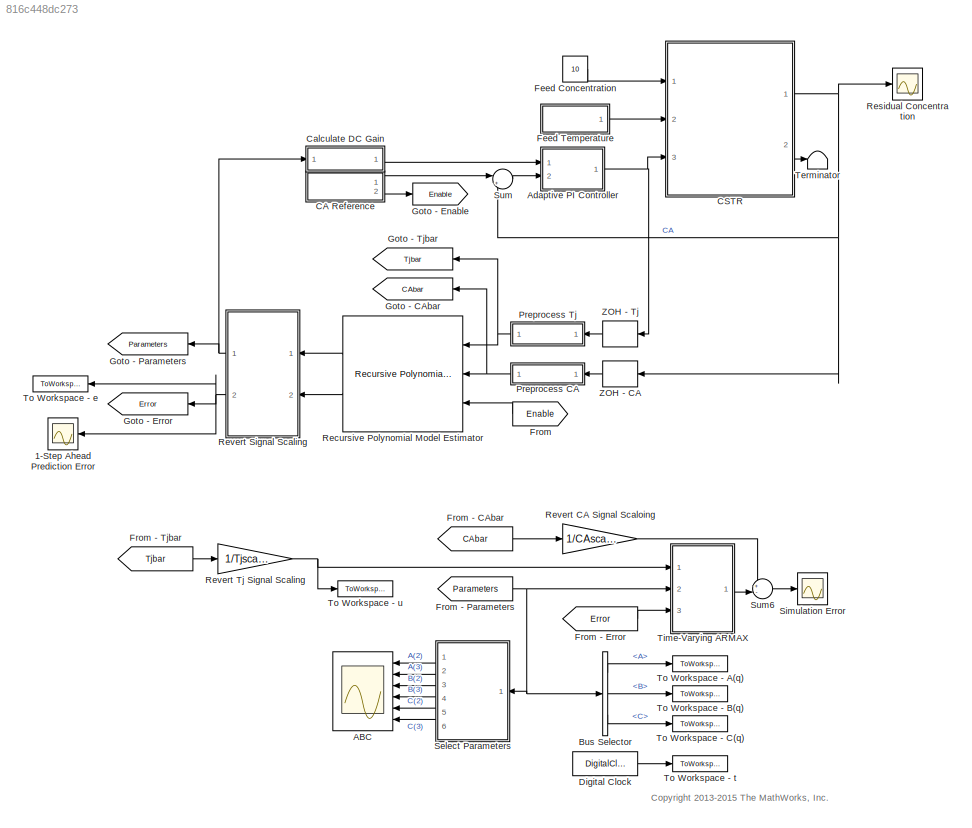
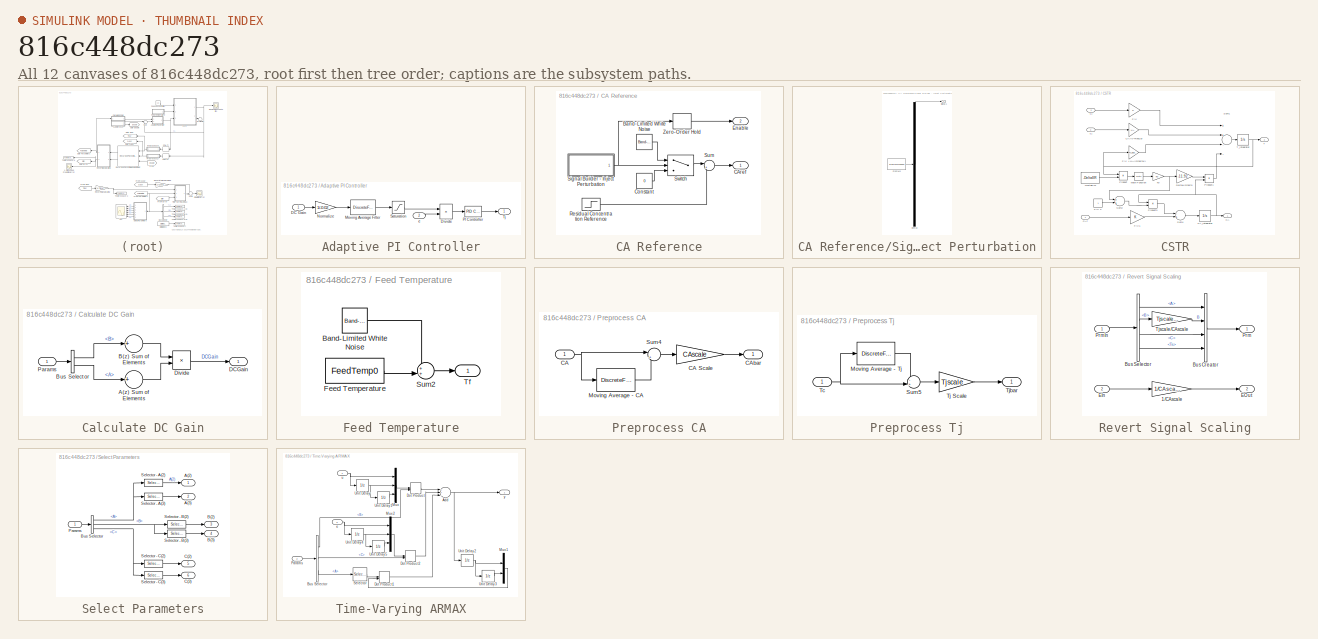
[diagram: thumbnail index - all 12 canvases of the model, root first then tree order]
MODEL slx_816c448dc273
KIND model
CONFIG AbsTol = auto
CONFIG FixedStep = auto
CONFIG MaxStep = 0.2
CONFIG MinStep = auto
CONFIG RelTol = 1e-3
CONFIG SampleTimeConstraint = Unconstrained
CONFIG Solver = ode45
CONFIG SolverMode = Auto
CONFIG SolverName = ode45
CONFIG StartTime = 0
CONFIG StopTime = 800
WORKSPACE source: MATLAB code (in-file)
WORKSPACE k0 = 34930800
WORKSPACE DeltaER = 5963.6
WORKSPACE DeltaH = -11.92
WORKSPACE UA = 0.3
WORKSPACE FV_plus_UA = 1.3
WORKSPACE Concentration0 = 1.5
WORKSPACE FeedCon0 = 10
WORKSPACE FeedTemp0 = 295
WORKSPACE tmpVal = FeedCon0/Concentration0-1  (= 5.66666666667)
WORKSPACE ReactorTemp0 = -DeltaER/log(tmpVal/k0)
WORKSPACE CoolantTemp0 = (ReactorTemp0*(FV_plus_UA)+tmpVal*Concentration0*DeltaH-FeedTemp0)/UA
WORKSPACE tStep = 400
WORKSPACE Ts = 0.1
WORKSPACE CAscale = 10
WORKSPACE Tjscale = 1/10  (= 0.1)
WORKSPACE N = 100
WORKSPACE code: clear tmpVal
BLOCK [Gain]  Revert CA Signal Scaloing
  Gain = 1/CAscale
  OutDataTypeStr = Inherit: Inherit via internal rule
  ParamDataTypeStr = Inherit: Inherit via internal rule
  SaturateOnIntegerOverflow = off
BLOCK [Scope] 1-Step Ahead Prediction Error
  Ports = [1]
  ScopeSpecificationString = Simulink.scopes.TimeScopeBlockCfg('CurrentConfiguration', extmgr.ConfigurationSet(extmgr.Configuration('Core','General UI',true,'ShowLoadConfigSet',false,'ShowNewAction',false,'FigureColor',[0.156862745098039 0.156862745098039 0.156862745098039],'ShowSaveConfigSet',false,'ShowConfiguration',true,'ShowPlaybackToolbar',false),extmgr.Configuration('Core','Source UI',true,'ShowRecentSources',false,'Sh...<+3146ch>
BLOCK [Scope] ABC
  NumInputPorts = 6
  Ports = [6]
  ScopeSpecificationString = Simulink.scopes.TimeScopeBlockCfg('CurrentConfiguration', extmgr.ConfigurationSet(extmgr.Configuration('Core','General UI',true,'FigureColor',[0.156862745098039 0.156862745098039 0.156862745098039]),extmgr.Configuration('Core','Source UI',true),extmgr.Configuration('Sources','WiredSimulink',true,'DataLoggingSaveFormat','StructureWithTime','DataLoggingDecimation','1'),extmgr.Configuration('Visuals'...<+8790ch>
BLOCK [SubSystem] Adaptive PI Controller
  Ports = [2, 1]
  RequestExecContextInheritance = off
  Variant = off
BLOCK [Inport] Adaptive PI Controller/DC Gain
  IconDisplay = Port number
BLOCK [Product] Adaptive PI Controller/Divide
  InputSameDT = off
  Inputs = /*
  OutDataTypeStr = Inherit: Inherit via internal rule
  Ports = [2, 1]
  RndMeth = Floor
  SaturateOnIntegerOverflow = off
BLOCK [DiscreteFilter] Adaptive PI Controller/Moving Average Filter
  Denominator = [1 -(1-1/N)]
  InitialStates = N
  InputPortMap = u0
  Numerator = [0 1/N]
  Ports = [1, 1]
  SampleTime = Ts
BLOCK [Gain] Adaptive PI Controller/Normalize
  Gain = 1/-0.02
  OutDataTypeStr = Inherit: Inherit via internal rule
  ParamDataTypeStr = Inherit: Inherit via internal rule
  SaturateOnIntegerOverflow = off
BLOCK [Reference] Adaptive PI Controller/PI Controller  REF=simulink/Continuous/PID Controller
  Ports = [1, 1]
  SourceBlock = simulink/Continuous/PID Controller
  SourceType = PID 1dof
BLOCK [Saturate] Adaptive PI Controller/Saturation
  InputPortMap = u0
  LowerLimit = 0.5
  Ports = [1, 1]
  UpperLimit = 3
BLOCK [Outport] Adaptive PI Controller/Tj
  IconDisplay = Port number
BLOCK [Inport] Adaptive PI Controller/e
  IconDisplay = Port number
  Port = 2
BLOCK [BusSelector] Bus Selector
  OutputSignals = A,B,C
  Ports = [1, 3]
BLOCK [SubSystem] CA Reference
  Ports = [0, 2]
  RequestExecContextInheritance = off
  Variant = off
BLOCK [Reference] CA Reference/Band-Limited White Noise  REF=simulink/Sources/Band-Limited
White Noise
  Ports = [0, 1]
  SourceBlock = simulink/Sources/Band-Limited\nWhite Noise
  SourceType = Band-Limited White Noise.
BLOCK [Outport] CA Reference/CAref
  IconDisplay = Port number
BLOCK [Constant] CA Reference/Constant
  Value = 0
BLOCK [Outport] CA Reference/Enable
  IconDisplay = Port number
  Port = 2
BLOCK [Step] CA Reference/Residual Concentration Reference
  After = 2
  Before = Concentration0
  SampleTime = 0
  Time = tStep
BLOCK [SubSystem] CA Reference/Signal Builder - Inject Perturbation
  ClipboardFcn = sigbuilder_block('clipboard');
  CloseFcn = sigbuilder_block('close');
  ContinueFcn = sigbuilder_block('continue');
  CopyFcn = sigbuilder_block('copy');
  DeleteFcn = sigbuilder_block('delete');
  LoadFcn = sigbuilder_block('load');
  MaskHideContents = on
  ModelCloseFcn = sigbuilder_block('modelClose');
  NameChangeFcn = sigbuilder_block('namechange');
  OpenFcn = sigbuilder_block('open',[437.25 199.5 550.5 399.75 ]);
  PauseFcn = sigbuilder_block('pause');
  Ports = [0, 1]
  PreSaveFcn = sigbuilder_block('preSave');
  RequestExecContextInheritance = off
  StartFcn = sigbuilder_block('start');
  StopFcn = sigbuilder_block('stop');
  Tag = STV Subsys
  Variant = off
BLOCK [Demux] CA Reference/Signal Builder - Inject Perturbation/Demux
  Outputs = 1
  Ports = [1, 1]
  Tag = STV Demux
BLOCK [FromWorkspace] CA Reference/Signal Builder - Inject Perturbation/FromWs
  SampleTime = 0
  Tag = STV FromWs
  VariableName = tuvar
  ZeroCross = on
BLOCK [Outport] CA Reference/Signal Builder - Inject Perturbation/Signal 1
  IconDisplay = Port number
  Tag = STV Outport
BLOCK [Sum] CA Reference/Sum
  IconShape = round
  InputSameDT = off
  Inputs = |++
  OutDataTypeStr = Inherit: Inherit via internal rule
  Ports = [2, 1]
  SaturateOnIntegerOverflow = off
BLOCK [Switch] CA Reference/Switch
  Criteria = u2 > Threshold
  InputSameDT = off
  SaturateOnIntegerOverflow = off
BLOCK [ZeroOrderHold] CA Reference/Zero-Order Hold
  SampleTime = Ts
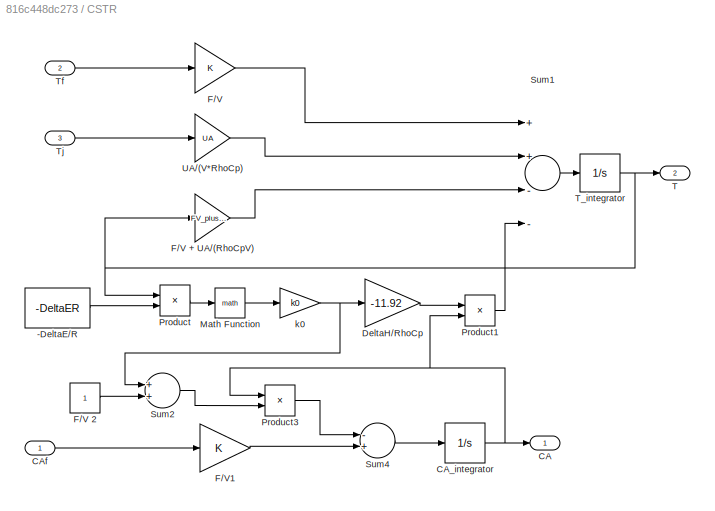
BLOCK [SubSystem] CSTR
  Ports = [3, 2]
  RequestExecContextInheritance = off
  Variant = off
BLOCK [Constant] CSTR/-DeltaE//R
  Value = -DeltaER
BLOCK [Outport] CSTR/CA
  IconDisplay = Port number
BLOCK [Integrator] CSTR/CA_integrator
  InitialCondition = Concentration0
  LimitOutput = on
  LowerSaturationLimit = 0
  Ports = [1, 1]
BLOCK [Inport] CSTR/CAf
  IconDisplay = Port number
BLOCK [Gain] CSTR/DeltaH//RhoCp
  Gain = -11.92
BLOCK [Gain] CSTR/F//V
BLOCK [Gain] CSTR/F//V + UA//(RhoCpV)
  Gain = FV_plus_UA
BLOCK [Constant] CSTR/F//V 2
BLOCK [Gain] CSTR/F//V1
BLOCK [Math] CSTR/Math Function
  Ports = [1, 1]
BLOCK [Product] CSTR/Product
  Inputs = /*
  Ports = [2, 1]
BLOCK [Product] CSTR/Product1
  Ports = [2, 1]
BLOCK [Product] CSTR/Product3
  Ports = [2, 1]
BLOCK [Sum] CSTR/Sum1
  Inputs = ++--
  Ports = [4, 1]
BLOCK [Sum] CSTR/Sum2
  Ports = [2, 1]
BLOCK [Sum] CSTR/Sum4
  Inputs = -+
  Ports = [2, 1]
BLOCK [Outport] CSTR/T
  IconDisplay = Port number
  Port = 2
BLOCK [Integrator] CSTR/T_integrator
  InitialCondition = ReactorTemp0
  LimitOutput = on
  LowerSaturationLimit = 0
  Ports = [1, 1]
BLOCK [Inport] CSTR/Tf
  IconDisplay = Port number
  Port = 2
BLOCK [Inport] CSTR/Tj
  IconDisplay = Port number
  Port = 3
BLOCK [Gain] CSTR/UA//(V*RhoCp)
  Gain = UA
BLOCK [Gain] CSTR/k0
  Gain = k0
BLOCK [SubSystem] Calculate DC Gain
  Ports = [1, 1]
  RequestExecContextInheritance = off
  Variant = off
BLOCK [Sum] Calculate DC Gain/A(z) Sum of Elements
  InputSameDT = off
  Inputs = +
  OutDataTypeStr = Inherit: Inherit via internal rule
  Ports = [1, 1]
  SaturateOnIntegerOverflow = off
BLOCK [Sum] Calculate DC Gain/B(z) Sum of Elements
  InputSameDT = off
  Inputs = +
  OutDataTypeStr = Inherit: Inherit via internal rule
  Ports = [1, 1]
  SaturateOnIntegerOverflow = off
BLOCK [BusSelector] Calculate DC Gain/Bus Selector
  OutputSignals = B,A
  Ports = [1, 2]
BLOCK [Outport] Calculate DC Gain/DCGain
  IconDisplay = Port number
BLOCK [Product] Calculate DC Gain/Divide
  InputSameDT = off
  Inputs = */
  OutDataTypeStr = Inherit: Inherit via internal rule
  Ports = [2, 1]
  RndMeth = Floor
  SaturateOnIntegerOverflow = off
BLOCK [Inport] Calculate DC Gain/Params
  IconDisplay = Port number
BLOCK [DigitalClock] Digital Clock
  SampleTime = Ts
BLOCK [Constant] Feed Concentration
  Value = 10
BLOCK [SubSystem] Feed Temperature
  Ports = [0, 1]
  RequestExecContextInheritance = off
  Variant = off
BLOCK [Reference] Feed Temperature/Band-Limited White Noise  REF=simulink/Sources/Band-Limited
White Noise
  Ports = [0, 1]
  SourceBlock = simulink/Sources/Band-Limited\nWhite Noise
  SourceType = Band-Limited White Noise.
BLOCK [Constant] Feed Temperature/Feed Temperature
  Value = FeedTemp0
BLOCK [Sum] Feed Temperature/Sum2
  IconShape = round
  InputSameDT = off
  Inputs = ++|
  OutDataTypeStr = Inherit: Inherit via internal rule
  Ports = [2, 1]
  SaturateOnIntegerOverflow = off
BLOCK [Outport] Feed Temperature/Tf
  IconDisplay = Port number
BLOCK [From] From
  GotoTag = Enable
BLOCK [From] From - CAbar
  GotoTag = CAbar
BLOCK [From] From - Error
  GotoTag = Error
BLOCK [From] From - Parameters
  GotoTag = Parameters
BLOCK [From] From - Tjbar
  GotoTag = Tjbar
BLOCK [Goto] Goto - CAbar
  GotoTag = CAbar
BLOCK [Goto] Goto - Enable
  GotoTag = Enable
BLOCK [Goto] Goto - Error
  GotoTag = Error
BLOCK [Goto] Goto - Parameters
  GotoTag = Parameters
BLOCK [Goto] Goto - Tjbar
  GotoTag = Tjbar
BLOCK [SubSystem] Preprocess CA
  Ports = [1, 1]
  RequestExecContextInheritance = off
  Variant = off
BLOCK [Inport] Preprocess CA/CA
  IconDisplay = Port number
BLOCK [Gain] Preprocess CA/CA Scale
  Gain = CAscale
  OutDataTypeStr = Inherit: Inherit via internal rule
  ParamDataTypeStr = Inherit: Inherit via internal rule
  SaturateOnIntegerOverflow = off
BLOCK [Outport] Preprocess CA/CAbar
  IconDisplay = Port number
BLOCK [DiscreteFilter] Preprocess CA/Moving Average - CA
  Denominator = [1 -(1-1/N)]
  InitialStates = Concentration0*N
  InputPortMap = u0
  Numerator = [0 1/N]
  Ports = [1, 1]
  SampleTime = Ts
BLOCK [Sum] Preprocess CA/Sum4
  IconShape = round
  InputSameDT = off
  Inputs = |+-
  OutDataTypeStr = Inherit: Inherit via internal rule
  Ports = [2, 1]
  SaturateOnIntegerOverflow = off
BLOCK [SubSystem] Preprocess Tj
  Ports = [1, 1]
  RequestExecContextInheritance = off
  Variant = off
BLOCK [DiscreteFilter] Preprocess Tj/Moving Average - Tj
  Denominator = [1 -(1-1/N)]
  InitialStates = CoolantTemp0*N
  InputPortMap = u0
  Numerator = [0 1/N]
  Ports = [1, 1]
  SampleTime = Ts
BLOCK [Sum] Preprocess Tj/Sum5
  IconShape = round
  InputSameDT = off
  Inputs = -+|
  OutDataTypeStr = Inherit: Inherit via internal rule
  Ports = [2, 1]
  SaturateOnIntegerOverflow = off
BLOCK [Inport] Preprocess Tj/Tc
  IconDisplay = Port number
BLOCK [Gain] Preprocess Tj/Tj Scale
  Gain = Tjscale
  OutDataTypeStr = Inherit: Inherit via internal rule
  ParamDataTypeStr = Inherit: Inherit via internal rule
  SaturateOnIntegerOverflow = off
BLOCK [Outport] Preprocess Tj/Tjbar
  IconDisplay = Port number
BLOCK [Reference] Recursive Polynomial Model Estimator  REF=slident/Estimators/Recursive Polynomial Model Estimator  (lib defined in mdl_f7d4911ca73a)
  Ports = [3, 2]
  SourceBlock = slident/Estimators/Recursive Polynomial Model Estimator
  SourceType = idEstimatorsPolyModel
BLOCK [Scope] Residual Concentration
  Ports = [1]
  ScopeSpecificationString = Simulink.scopes.TimeScopeBlockCfg('CurrentConfiguration', extmgr.ConfigurationSet(extmgr.Configuration('Core','General UI',true,'ShowLoadConfigSet',false,'ShowNewAction',false,'FigureColor',[0.156862745098039 0.156862745098039 0.156862745098039],'ShowSaveConfigSet',false,'ShowConfiguration',true,'ShowPlaybackToolbar',false),extmgr.Configuration('Core','Source UI',true,'ShowRecentSources',false,'Sh...<+3120ch>
BLOCK [SubSystem] Revert Signal Scaling
  Ports = [2, 2]
  RequestExecContextInheritance = off
  Variant = off
BLOCK [Gain] Revert Signal Scaling/1//CAscale
  Gain = 1/CAscale
  OutDataTypeStr = Inherit: Inherit via internal rule
  ParamDataTypeStr = Inherit: Inherit via internal rule
  SaturateOnIntegerOverflow = off
BLOCK [BusCreator] Revert Signal Scaling/Bus Creator
  DisplayOption = bar
  InheritFromInputs = on
  Inputs = 4
  Ports = [4, 1]
BLOCK [BusSelector] Revert Signal Scaling/Bus Selector
  OutputSignals = A,B,C,Ts
  Ports = [1, 4]
BLOCK [Inport] Revert Signal Scaling/EIn
  IconDisplay = Port number
  Port = 2
BLOCK [Outport] Revert Signal Scaling/EOut
  IconDisplay = Port number
  Port = 2
BLOCK [Outport] Revert Signal Scaling/Prm
  IconDisplay = Port number
BLOCK [Inport] Revert Signal Scaling/PrmIn
  IconDisplay = Port number
BLOCK [Gain] Revert Signal Scaling/Tjscale//CAscale
  Gain = Tjscale/CAscale
  OutDataTypeStr = Inherit: Inherit via internal rule
  ParamDataTypeStr = Inherit: Inherit via internal rule
  SaturateOnIntegerOverflow = off
BLOCK [Gain] Revert Tj Signal Scaling
  Gain = 1/Tjscale
  OutDataTypeStr = Inherit: Inherit via internal rule
  ParamDataTypeStr = Inherit: Inherit via internal rule
  SaturateOnIntegerOverflow = off
BLOCK [SubSystem] Select Parameters
  Ports = [1, 6]
  RequestExecContextInheritance = off
  Variant = off
BLOCK [Outport] Select Parameters/A(2)
  IconDisplay = Port number
BLOCK [Outport] Select Parameters/A(3)
  IconDisplay = Port number
  Port = 2
BLOCK [Outport] Select Parameters/B(2)
  IconDisplay = Port number
  Port = 3
BLOCK [Outport] Select Parameters/B(3)
  IconDisplay = Port number
  Port = 4
BLOCK [BusSelector] Select Parameters/Bus Selector
  OutputSignals = A,B,C
  Ports = [1, 3]
BLOCK [Outport] Select Parameters/C(2)
  IconDisplay = Port number
  Port = 5
BLOCK [Outport] Select Parameters/C(3)
  IconDisplay = Port number
  Port = 6
BLOCK [Inport] Select Parameters/Params
  IconDisplay = Port number
BLOCK [Selector] Select Parameters/Selector - A(2)
  IndexOptions = Index vector (dialog),Index vector (dialog)
  Indices = 1,2
  InputPortWidth = 3
  NumberOfDimensions = 2
  OutputSizes = 1,1
  Ports = [1, 1]
BLOCK [Selector] Select Parameters/Selector - A(3)
  IndexOptions = Index vector (dialog),Index vector (dialog)
  Indices = 1,3
  InputPortWidth = 3
  NumberOfDimensions = 2
  OutputSizes = 1,1
  Ports = [1, 1]
BLOCK [Selector] Select Parameters/Selector - B(2)
  IndexOptions = Index vector (dialog),Index vector (dialog)
  Indices = 1,2
  InputPortWidth = 3
  NumberOfDimensions = 2
  OutputSizes = 1,1
  Ports = [1, 1]
BLOCK [Selector] Select Parameters/Selector - B(3)
  IndexOptions = Index vector (dialog),Index vector (dialog)
  Indices = 1,3
  InputPortWidth = 3
  NumberOfDimensions = 2
  OutputSizes = 1,1
  Ports = [1, 1]
BLOCK [Selector] Select Parameters/Selector - C(2)
  IndexOptions = Index vector (dialog),Index vector (dialog)
  Indices = 1,2
  InputPortWidth = 3
  NumberOfDimensions = 2
  OutputSizes = 1,1
  Ports = [1, 1]
BLOCK [Selector] Select Parameters/Selector - C(3)
  IndexOptions = Index vector (dialog),Index vector (dialog)
  Indices = 1,3
  InputPortWidth = 3
  NumberOfDimensions = 2
  OutputSizes = 1,1
  Ports = [1, 1]
BLOCK [Scope] Simulation Error
  Ports = [1]
  ScopeSpecificationString = Simulink.scopes.TimeScopeBlockCfg('CurrentConfiguration', extmgr.ConfigurationSet(extmgr.Configuration('Core','General UI',true,'ShowLoadConfigSet',false,'ShowNewAction',false,'FigureColor',[0.156862745098039 0.156862745098039 0.156862745098039],'ShowSaveConfigSet',false,'ShowConfiguration',true,'ShowPlaybackToolbar',false),extmgr.Configuration('Core','Source UI',true,'ShowRecentSources',false,'Sh...<+3147ch>
BLOCK [Sum] Sum
  IconShape = round
  InputSameDT = off
  Inputs = |+-
  OutDataTypeStr = Inherit: Inherit via internal rule
  Ports = [2, 1]
  SaturateOnIntegerOverflow = off
BLOCK [Sum] Sum6
  IconShape = round
  InputSameDT = off
  Inputs = +-|
  OutDataTypeStr = Inherit: Inherit via internal rule
  Ports = [2, 1]
  SaturateOnIntegerOverflow = off
BLOCK [Terminator] Terminator
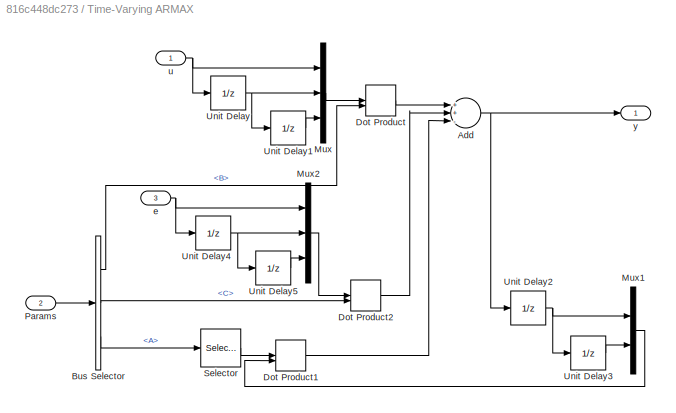
BLOCK [SubSystem] Time-Varying ARMAX
  Ports = [3, 1]
  RequestExecContextInheritance = off
  Variant = off
BLOCK [Sum] Time-Varying ARMAX/Add
  InputSameDT = off
  Inputs = ++-
  OutDataTypeStr = Inherit: Inherit via internal rule
  Ports = [3, 1]
  SaturateOnIntegerOverflow = off
BLOCK [BusSelector] Time-Varying ARMAX/Bus Selector
  OutputSignals = B,C,A
  Ports = [1, 3]
BLOCK [DotProduct] Time-Varying ARMAX/Dot Product
  OutDataTypeStr = Inherit: Inherit via internal rule
BLOCK [DotProduct] Time-Varying ARMAX/Dot Product1
  OutDataTypeStr = Inherit: Inherit via internal rule
BLOCK [DotProduct] Time-Varying ARMAX/Dot Product2
  OutDataTypeStr = Inherit: Inherit via internal rule
BLOCK [Mux] Time-Varying ARMAX/Mux
  DisplayOption = bar
  Inputs = 3
  Ports = [3, 1]
BLOCK [Mux] Time-Varying ARMAX/Mux1
  DisplayOption = bar
  Inputs = 2
  Ports = [2, 1]
BLOCK [Mux] Time-Varying ARMAX/Mux2
  DisplayOption = bar
  Inputs = 3
  Ports = [3, 1]
BLOCK [Inport] Time-Varying ARMAX/Params
  IconDisplay = Port number
  Port = 2
BLOCK [Selector] Time-Varying ARMAX/Selector
  IndexOptions = Index vector (dialog),Index vector (dialog)
  Indices = 1,[2 3]
  InputPortWidth = 3
  NumberOfDimensions = 2
  OutputSizes = 1,1
  Ports = [1, 1]
BLOCK [UnitDelay] Time-Varying ARMAX/Unit Delay
  InputProcessing = Elements as channels (sample based)
  SampleTime = -1
BLOCK [UnitDelay] Time-Varying ARMAX/Unit Delay1
  InputProcessing = Elements as channels (sample based)
  SampleTime = -1
BLOCK [UnitDelay] Time-Varying ARMAX/Unit Delay2
  InputProcessing = Elements as channels (sample based)
  SampleTime = -1
BLOCK [UnitDelay] Time-Varying ARMAX/Unit Delay3
  InputProcessing = Elements as channels (sample based)
  SampleTime = -1
BLOCK [UnitDelay] Time-Varying ARMAX/Unit Delay4
  InputProcessing = Elements as channels (sample based)
  SampleTime = -1
BLOCK [UnitDelay] Time-Varying ARMAX/Unit Delay5
  InputProcessing = Elements as channels (sample based)
  SampleTime = -1
BLOCK [Inport] Time-Varying ARMAX/e
  IconDisplay = Port number
  Port = 3
BLOCK [Inport] Time-Varying ARMAX/u
  IconDisplay = Port number
BLOCK [Outport] Time-Varying ARMAX/y
  IconDisplay = Port number
BLOCK [ToWorkspace] To Workspace - A(q)
  FixptAsFi = on
  MaxDataPoints = inf
  Ports = [1]
  SampleTime = -1
  Save2DSignal = 3-D array (concatenate along third dimension)
  VariableName = AHat
BLOCK [ToWorkspace] To Workspace - B(q)
  FixptAsFi = on
  MaxDataPoints = inf
  Ports = [1]
  SampleTime = -1
  Save2DSignal = 3-D array (concatenate along third dimension)
  VariableName = BHat
BLOCK [ToWorkspace] To Workspace - C(q)
  FixptAsFi = on
  MaxDataPoints = inf
  Ports = [1]
  SampleTime = -1
  Save2DSignal = 3-D array (concatenate along third dimension)
  VariableName = CHat
BLOCK [ToWorkspace] To Workspace - e
  FixptAsFi = on
  MaxDataPoints = inf
  Ports = [1]
  SampleTime = -1
  Save2DSignal = 3-D array (concatenate along third dimension)
  VariableName = e
BLOCK [ToWorkspace] To Workspace - t
  FixptAsFi = on
  MaxDataPoints = inf
  Ports = [1]
  SampleTime = -1
  Save2DSignal = 3-D array (concatenate along third dimension)
  VariableName = t
BLOCK [ToWorkspace] To Workspace - u
  FixptAsFi = on
  MaxDataPoints = inf
  Ports = [1]
  SampleTime = -1
  Save2DSignal = 3-D array (concatenate along third dimension)
  VariableName = u
BLOCK [ZeroOrderHold] ZOH - CA
  SampleTime = Ts
BLOCK [ZeroOrderHold] ZOH - Tj
  SampleTime = Ts
ANNOTATION (root): <copyright redacted>
LINE  Revert CA Signal Scaloing:1 -> Sum6:1
LINE Adaptive PI Controller/DC Gain:1 -> Adaptive PI Controller/Normalize:1
LINE Adaptive PI Controller/Divide:1 -> Adaptive PI Controller/PI Controller:1
LINE Adaptive PI Controller/Moving Average Filter:1 -> Adaptive PI Controller/Saturation:1
LINE Adaptive PI Controller/Normalize:1 -> Adaptive PI Controller/Moving Average Filter:1
LINE Adaptive PI Controller/PI Controller:1 -> Adaptive PI Controller/Tj:1
LINE Adaptive PI Controller/Saturation:1 -> Adaptive PI Controller/Divide:1
LINE Adaptive PI Controller/e:1 -> Adaptive PI Controller/Divide:2
NET Adaptive PI Controller:1 -> CSTR:3, ZOH - Tj:1
LINE Bus Selector:1 -> To Workspace - A(q):1
LINE Bus Selector:2 -> To Workspace - B(q):1
LINE Bus Selector:3 -> To Workspace - C(q):1
LINE CA Reference/Band-Limited White Noise:1 -> CA Reference/Switch:1
LINE CA Reference/Constant:1 -> CA Reference/Switch:3
LINE CA Reference/Residual Concentration Reference:1 -> CA Reference/Sum:2
NET CA Reference/Signal Builder - Inject Perturbation:1 -> CA Reference/Switch:2, CA Reference/Zero-Order Hold:1
LINE CA Reference/Sum:1 -> CA Reference/CAref:1
LINE CA Reference/Switch:1 -> CA Reference/Sum:1
LINE CA Reference/Zero-Order Hold:1 -> CA Reference/Enable:1
LINE CA Reference:1 -> Sum:1
LINE CA Reference:2 -> Goto - Enable:1
LINE CSTR/-DeltaE//R:1 -> CSTR/Product:2
NET CSTR/CA_integrator:1 -> CSTR/CA:1, CSTR/Product1:2, CSTR/Product3:1
LINE CSTR/CAf:1 -> CSTR/F//V1:1
LINE CSTR/DeltaH//RhoCp:1 -> CSTR/Product1:1
LINE CSTR/F//V + UA//(RhoCpV):1 -> CSTR/Sum1:3
LINE CSTR/F//V 2:1 -> CSTR/Sum2:2
LINE CSTR/F//V1:1 -> CSTR/Sum4:2
LINE CSTR/F//V:1 -> CSTR/Sum1:1
LINE CSTR/Math Function:1 -> CSTR/k0:1
LINE CSTR/Product1:1 -> CSTR/Sum1:4
LINE CSTR/Product3:1 -> CSTR/Sum4:1
LINE CSTR/Product:1 -> CSTR/Math Function:1
LINE CSTR/Sum1:1 -> CSTR/T_integrator:1
LINE CSTR/Sum2:1 -> CSTR/Product3:2
LINE CSTR/Sum4:1 -> CSTR/CA_integrator:1
NET CSTR/T_integrator:1 -> CSTR/F//V + UA//(RhoCpV):1, CSTR/Product:1, CSTR/T:1
LINE CSTR/Tf:1 -> CSTR/F//V:1
LINE CSTR/Tj:1 -> CSTR/UA//(V*RhoCp):1
LINE CSTR/UA//(V*RhoCp):1 -> CSTR/Sum1:2
NET CSTR/k0:1 -> CSTR/DeltaH//RhoCp:1, CSTR/Sum2:1
NET CSTR:1 -> Residual Concentration:1, Sum:2, ZOH - CA:1
LINE CSTR:2 -> Terminator:1
LINE Calculate DC Gain/A(z) Sum of Elements:1 -> Calculate DC Gain/Divide:2
LINE Calculate DC Gain/B(z) Sum of Elements:1 -> Calculate DC Gain/Divide:1
LINE Calculate DC Gain/Bus Selector:1 -> Calculate DC Gain/B(z) Sum of Elements:1
LINE Calculate DC Gain/Bus Selector:2 -> Calculate DC Gain/A(z) Sum of Elements:1
LINE Calculate DC Gain/Divide:1 -> Calculate DC Gain/DCGain:1
LINE Calculate DC Gain/Params:1 -> Calculate DC Gain/Bus Selector:1
LINE Calculate DC Gain:1 -> Adaptive PI Controller:1
LINE Digital Clock:1 -> To Workspace - t:1
LINE Feed Concentration:1 -> CSTR:1
LINE Feed Temperature/Band-Limited White Noise:1 -> Feed Temperature/Sum2:1
LINE Feed Temperature/Feed Temperature:1 -> Feed Temperature/Sum2:2
LINE Feed Temperature/Sum2:1 -> Feed Temperature/Tf:1
LINE Feed Temperature:1 -> CSTR:2
LINE From - CAbar:1 ->  Revert CA Signal Scaloing:1
LINE From - Error:1 -> Time-Varying ARMAX:3
NET From - Parameters:1 -> Bus Selector:1, Select Parameters:1, Time-Varying ARMAX:2
LINE From - Tjbar:1 -> Revert Tj Signal Scaling:1
LINE From:1 -> Recursive Polynomial Model Estimator:3
LINE Preprocess CA/CA Scale:1 -> Preprocess CA/CAbar:1
NET Preprocess CA/CA:1 -> Preprocess CA/Moving Average - CA:1, Preprocess CA/Sum4:1
LINE Preprocess CA/Moving Average - CA:1 -> Preprocess CA/Sum4:2
LINE Preprocess CA/Sum4:1 -> Preprocess CA/CA Scale:1
NET Preprocess CA:1 -> Goto - CAbar:1, Recursive Polynomial Model Estimator:2
LINE Preprocess Tj/Moving Average - Tj:1 -> Preprocess Tj/Sum5:1
LINE Preprocess Tj/Sum5:1 -> Preprocess Tj/Tj Scale:1
NET Preprocess Tj/Tc:1 -> Preprocess Tj/Moving Average - Tj:1, Preprocess Tj/Sum5:2
LINE Preprocess Tj/Tj Scale:1 -> Preprocess Tj/Tjbar:1
NET Preprocess Tj:1 -> Goto - Tjbar:1, Recursive Polynomial Model Estimator:1
LINE Recursive Polynomial Model Estimator:1 -> Revert Signal Scaling:1
LINE Recursive Polynomial Model Estimator:2 -> Revert Signal Scaling:2
LINE Revert Signal Scaling/1//CAscale:1 -> Revert Signal Scaling/EOut:1
LINE Revert Signal Scaling/Bus Creator:1 -> Revert Signal Scaling/Prm:1
LINE Revert Signal Scaling/Bus Selector:1 -> Revert Signal Scaling/Bus Creator:1
LINE Revert Signal Scaling/Bus Selector:2 -> Revert Signal Scaling/Tjscale//CAscale:1
LINE Revert Signal Scaling/Bus Selector:3 -> Revert Signal Scaling/Bus Creator:3
LINE Revert Signal Scaling/Bus Selector:4 -> Revert Signal Scaling/Bus Creator:4
LINE Revert Signal Scaling/EIn:1 -> Revert Signal Scaling/1//CAscale:1
LINE Revert Signal Scaling/PrmIn:1 -> Revert Signal Scaling/Bus Selector:1
LINE Revert Signal Scaling/Tjscale//CAscale:1 -> Revert Signal Scaling/Bus Creator:2
NET Revert Signal Scaling:1 -> Calculate DC Gain:1, Goto - Parameters:1
NET Revert Signal Scaling:2 -> 1-Step Ahead Prediction Error:1, Goto - Error:1, To Workspace - e:1
NET Revert Tj Signal Scaling:1 -> Time-Varying ARMAX:1, To Workspace - u:1
NET Select Parameters/Bus Selector:1 -> Select Parameters/Selector - A(2):1, Select Parameters/Selector - A(3):1
NET Select Parameters/Bus Selector:2 -> Select Parameters/Selector - B(2):1, Select Parameters/Selector - B(3):1
NET Select Parameters/Bus Selector:3 -> Select Parameters/Selector - C(2):1, Select Parameters/Selector - C(3):1
LINE Select Parameters/Params:1 -> Select Parameters/Bus Selector:1
LINE Select Parameters/Selector - A(2):1 -> Select Parameters/A(2):1
LINE Select Parameters/Selector - A(3):1 -> Select Parameters/A(3):1
LINE Select Parameters/Selector - B(2):1 -> Select Parameters/B(2):1
LINE Select Parameters/Selector - B(3):1 -> Select Parameters/B(3):1
LINE Select Parameters/Selector - C(2):1 -> Select Parameters/C(2):1
LINE Select Parameters/Selector - C(3):1 -> Select Parameters/C(3):1
LINE Select Parameters:1 -> ABC:1
LINE Select Parameters:2 -> ABC:2
LINE Select Parameters:3 -> ABC:3
LINE Select Parameters:4 -> ABC:4
LINE Select Parameters:5 -> ABC:5
LINE Select Parameters:6 -> ABC:6
LINE Sum6:1 -> Simulation Error:1
LINE Sum:1 -> Adaptive PI Controller:2
NET Time-Varying ARMAX/Add:1 -> Time-Varying ARMAX/Unit Delay2:1, Time-Varying ARMAX/y:1
LINE Time-Varying ARMAX/Bus Selector:1 -> Time-Varying ARMAX/Dot Product:2
LINE Time-Varying ARMAX/Bus Selector:2 -> Time-Varying ARMAX/Dot Product2:2
LINE Time-Varying ARMAX/Bus Selector:3 -> Time-Varying ARMAX/Selector:1
LINE Time-Varying ARMAX/Dot Product1:1 -> Time-Varying ARMAX/Add:3
LINE Time-Varying ARMAX/Dot Product2:1 -> Time-Varying ARMAX/Add:2
LINE Time-Varying ARMAX/Dot Product:1 -> Time-Varying ARMAX/Add:1
LINE Time-Varying ARMAX/Mux1:1 -> Time-Varying ARMAX/Dot Product1:2
LINE Time-Varying ARMAX/Mux2:1 -> Time-Varying ARMAX/Dot Product2:1
LINE Time-Varying ARMAX/Mux:1 -> Time-Varying ARMAX/Dot Product:1
LINE Time-Varying ARMAX/Params:1 -> Time-Varying ARMAX/Bus Selector:1
LINE Time-Varying ARMAX/Selector:1 -> Time-Varying ARMAX/Dot Product1:1
LINE Time-Varying ARMAX/Unit Delay1:1 -> Time-Varying ARMAX/Mux:3
NET Time-Varying ARMAX/Unit Delay2:1 -> Time-Varying ARMAX/Mux1:1, Time-Varying ARMAX/Unit Delay3:1
LINE Time-Varying ARMAX/Unit Delay3:1 -> Time-Varying ARMAX/Mux1:2
NET Time-Varying ARMAX/Unit Delay4:1 -> Time-Varying ARMAX/Mux2:2, Time-Varying ARMAX/Unit Delay5:1
LINE Time-Varying ARMAX/Unit Delay5:1 -> Time-Varying ARMAX/Mux2:3
NET Time-Varying ARMAX/Unit Delay:1 -> Time-Varying ARMAX/Mux:2, Time-Varying ARMAX/Unit Delay1:1
NET Time-Varying ARMAX/e:1 -> Time-Varying ARMAX/Mux2:1, Time-Varying ARMAX/Unit Delay4:1
NET Time-Varying ARMAX/u:1 -> Time-Varying ARMAX/Mux:1, Time-Varying ARMAX/Unit Delay:1
LINE Time-Varying ARMAX:1 -> Sum6:2
LINE ZOH - CA:1 -> Preprocess CA:1
LINE ZOH - Tj:1 -> Preprocess Tj:1
note: NET lines group one-source signal fan-out (src -> all destinations, sorted); 1:1 wires keep LINE
